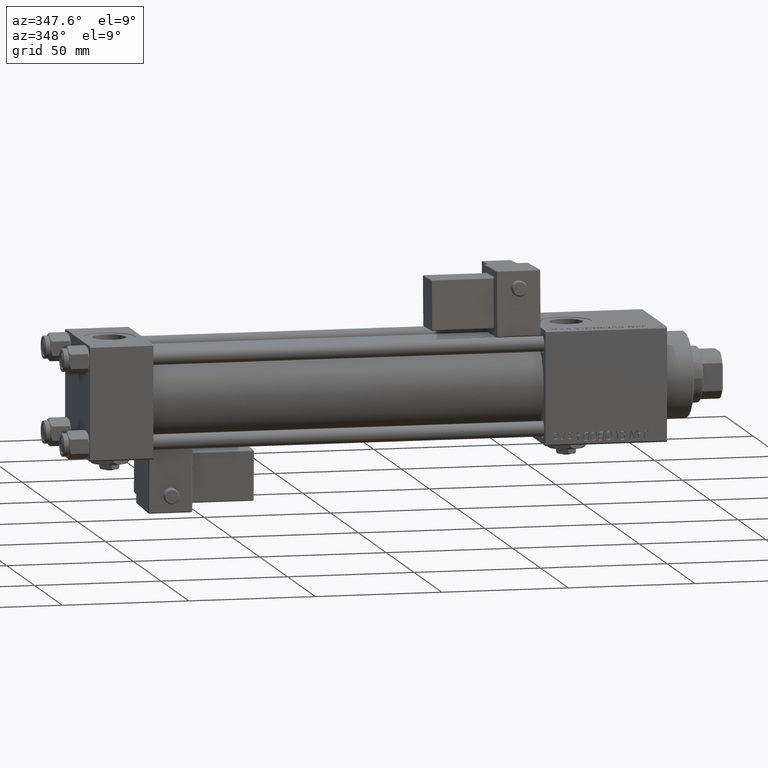
[diagram: clean part render]
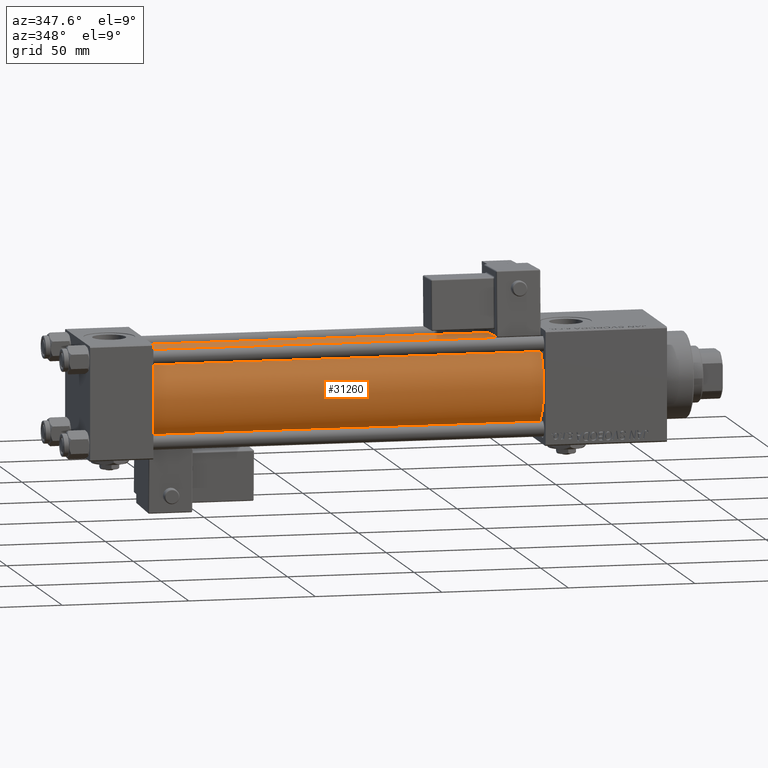
[diagram: same view with one face highlighted and labeled with its STEP entity id]
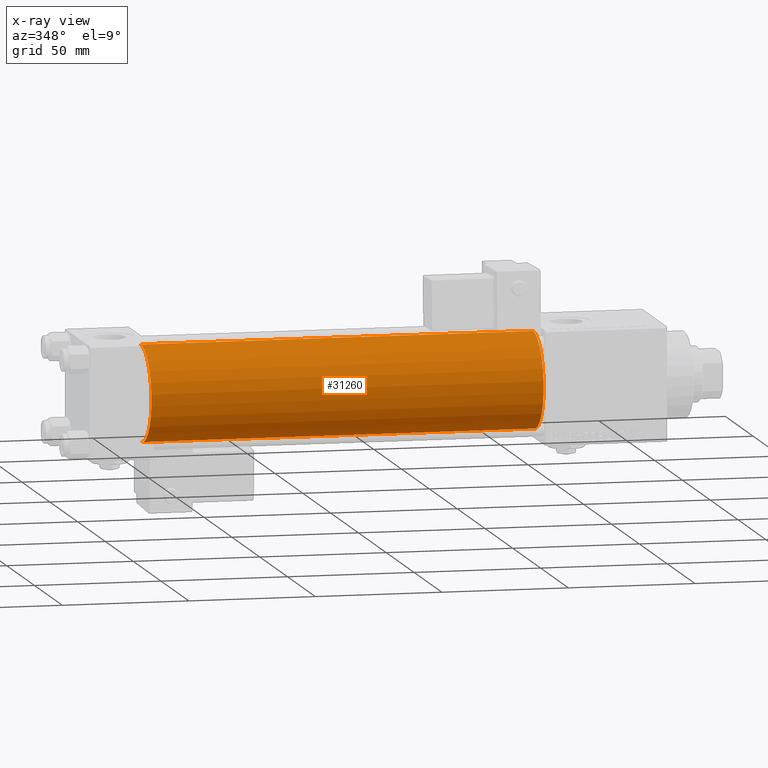
[diagram: x-ray of the same camera — body ghosted, the highlighted face saturated]
A machine part, auxiliary view. The second image highlights one B-rep face of the part: STEP entity #31260.
The next image is the same camera in x-ray: the body ghosted, the highlighted face saturated — about 0% of this face is hidden behind the body in this view.
In plain terms, the highlighted cylindrical surface (partial cylindrical patch) has radius 19 mm, axis along (-1, -0, -0).
Its self-contained STEP definition (entity closure, byte-faithful):
#2974 = VERTEX_POINT ( 'NONE', #25001 ) ;
#9466 = CARTESIAN_POINT ( 'NONE',  ( 24.99999999999999289, -2.602085213965210642E-15, 19.00000000000000000 ) ) ;
#9772 = FACE_OUTER_BOUND ( 'NONE', #33933, .T. ) ;
#9791 = EDGE_CURVE ( 'NONE', #42944, #12856, #48460, .T. ) ;
#10679 = ORIENTED_EDGE ( 'NONE', *, *, #9791, .F. ) ;
#12159 = AXIS2_PLACEMENT_3D ( 'NONE', #49247, #31211, #19063 ) ;
#12317 = DIRECTION ( 'NONE',  ( -1.000000000000000000, -0.000000000000000000, -0.000000000000000000 ) ) ;
#12856 = VERTEX_POINT ( 'NONE', #29904 ) ;
#13903 = VECTOR ( 'NONE', #48625, 1000.000000000000000 ) ;
#14414 = DIRECTION ( 'NONE',  ( 1.000000000000000000, 0.000000000000000000, 0.000000000000000000 ) ) ;
#15551 = AXIS2_PLACEMENT_3D ( 'NONE', #48033, #35895, #18964 ) ;
#15944 = ORIENTED_EDGE ( 'NONE', *, *, #37396, .T. ) ;
#17895 = CARTESIAN_POINT ( 'NONE',  ( 180.0000000000000000, -2.752562955852396712E-16, -19.00000000000000000 ) ) ;
#17937 = VECTOR ( 'NONE', #12317, 1000.000000000000000 ) ;
#18964 = DIRECTION ( 'NONE',  ( 0.000000000000000000, 0.000000000000000000, 1.000000000000000000 ) ) ;
#19063 = DIRECTION ( 'NONE',  ( 0.000000000000000000, 0.000000000000000000, 1.000000000000000000 ) ) ;
#20427 = CARTESIAN_POINT ( 'NONE',  ( 180.0000000000000000, -2.602085213965210642E-15, 19.00000000000000000 ) ) ;
#24116 = AXIS2_PLACEMENT_3D ( 'NONE', #48538, #14414, #31600 ) ;
#25001 = CARTESIAN_POINT ( 'NONE',  ( 24.99999999999999289, -2.752562955852396712E-16, -19.00000000000000000 ) ) ;
#29151 = EDGE_CURVE ( 'NONE', #12856, #2974, #39326, .T. ) ;
#29904 = CARTESIAN_POINT ( 'NONE',  ( 180.0000000000000000, -2.752562955852396712E-16, -19.00000000000000000 ) ) ;
#31211 = DIRECTION ( 'NONE',  ( -1.000000000000000000, -0.000000000000000000, -0.000000000000000000 ) ) ;
#31260 = ADVANCED_FACE ( 'NONE', ( #9772 ), #31484, .T. ) ;
#31484 = CYLINDRICAL_SURFACE ( 'NONE', #12159, 19.00000000000000000 ) ;
#31600 = DIRECTION ( 'NONE',  ( 0.000000000000000000, 0.000000000000000000, -1.000000000000000000 ) ) ;
#33933 = EDGE_LOOP ( 'NONE', ( #37795, #10679, #15944, #36355 ) ) ;
#35895 = DIRECTION ( 'NONE',  ( 1.000000000000000000, -0.000000000000000000, 0.000000000000000000 ) ) ;
#36355 = ORIENTED_EDGE ( 'NONE', *, *, #47817, .T. ) ;
#37396 = EDGE_CURVE ( 'NONE', #42944, #55283, #50970, .T. ) ;
#37795 = ORIENTED_EDGE ( 'NONE', *, *, #29151, .F. ) ;
#38552 = CARTESIAN_POINT ( 'NONE',  ( 180.0000000000000000, -2.602085213965210642E-15, 19.00000000000000000 ) ) ;
#39326 = LINE ( 'NONE', #17895, #13903 ) ;
#42574 = CIRCLE ( 'NONE', #15551, 19.00000000000000000 ) ;
#42944 = VERTEX_POINT ( 'NONE', #20427 ) ;
#47817 = EDGE_CURVE ( 'NONE', #55283, #2974, #42574, .T. ) ;
#48033 = CARTESIAN_POINT ( 'NONE',  ( 24.99999999999999289, -2.602085213965210642E-15, 0.000000000000000000 ) ) ;
#48460 = CIRCLE ( 'NONE', #24116, 19.00000000000000000 ) ;
#48538 = CARTESIAN_POINT ( 'NONE',  ( 180.0000000000000000, -2.602085213965210642E-15, 0.000000000000000000 ) ) ;
#48625 = DIRECTION ( 'NONE',  ( -1.000000000000000000, -0.000000000000000000, -0.000000000000000000 ) ) ;
#49247 = CARTESIAN_POINT ( 'NONE',  ( 180.0000000000000000, -2.602085213965210642E-15, 0.000000000000000000 ) ) ;
#50970 = LINE ( 'NONE', #38552, #17937 ) ;
#55283 = VERTEX_POINT ( 'NONE', #9466 ) ;